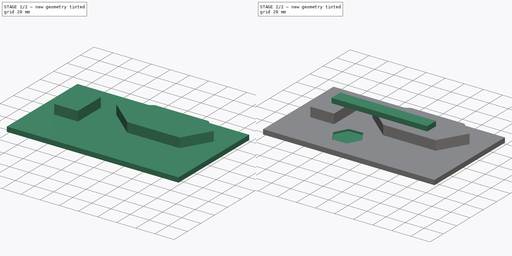
[diagram: build sequence overview — one tinted view per stage of 2, left to right]
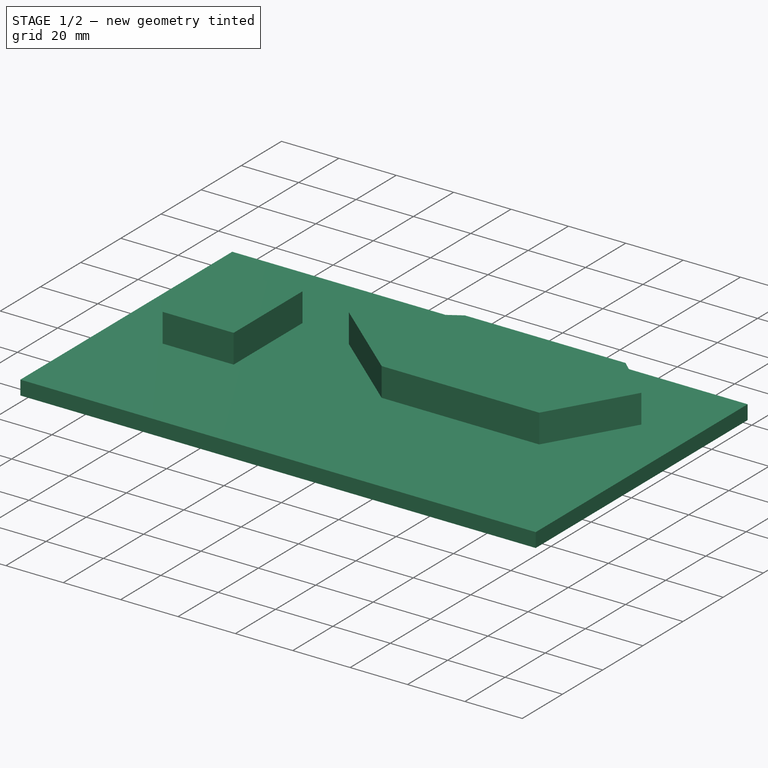
[diagram: stage 1 of 2 — iso view after this stage's code; geometry added in this stage tinted green]
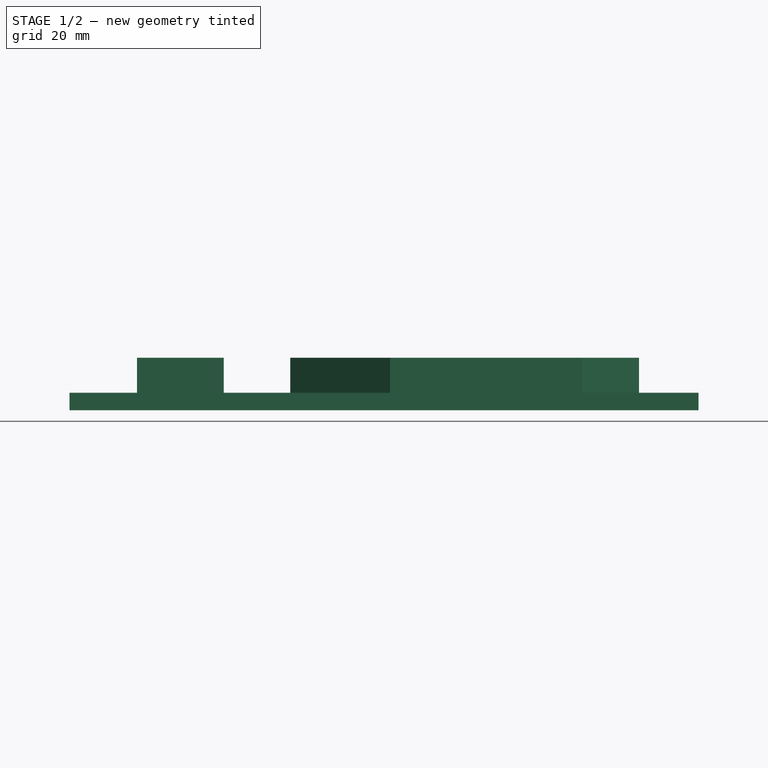
[diagram: stage 1 of 2 — front view after this stage's code; geometry added in this stage tinted green]
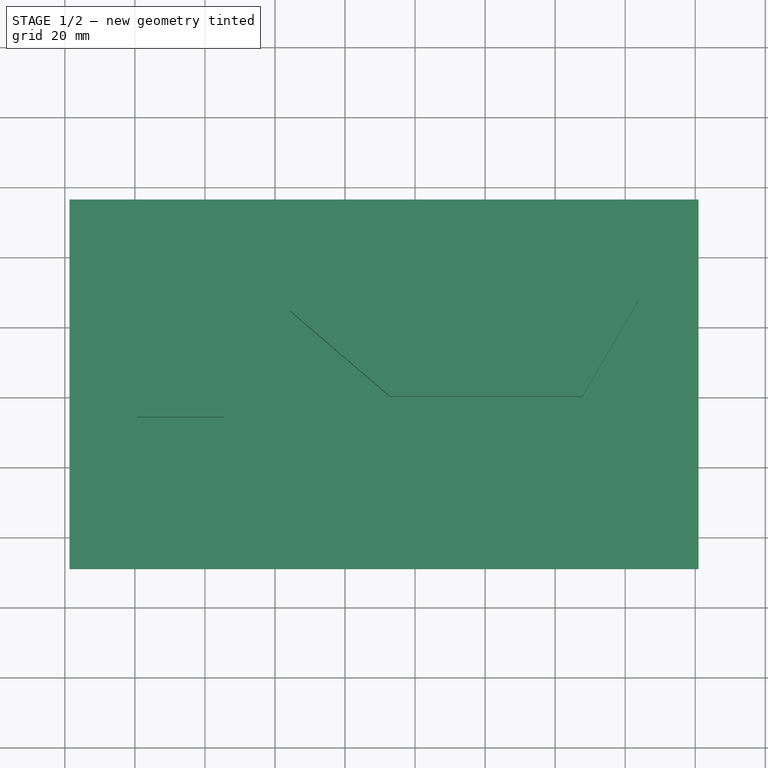
[diagram: stage 1 of 2 — top view after this stage's code; geometry added in this stage tinted green]
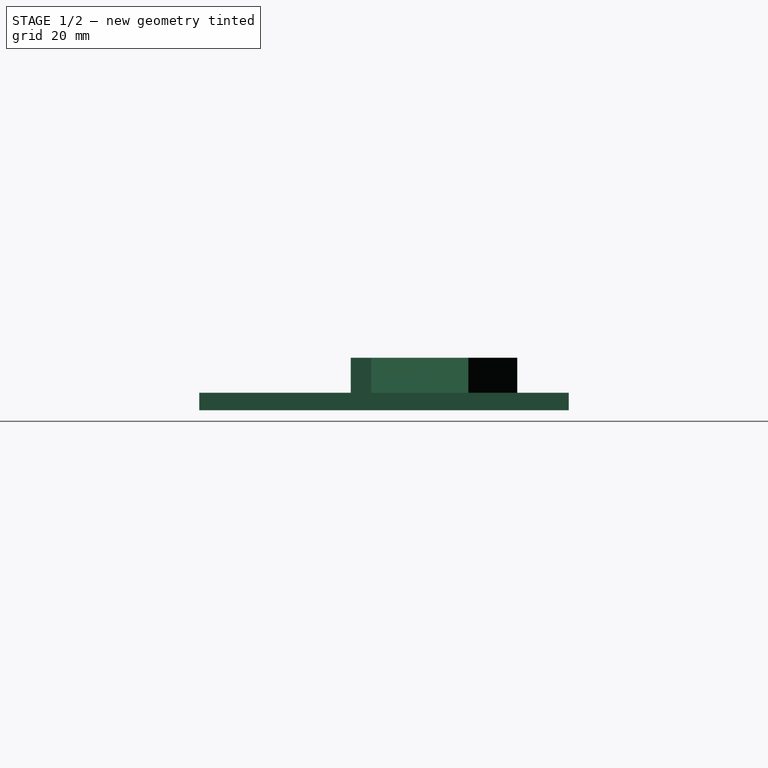
[diagram: stage 1 of 2 — right view after this stage's code; geometry added in this stage tinted green]
FCSTD DOCUMENT  (FreeCAD 0.17R13122 (Git))
Label: layerslice
License: All rights reserved
LicenseURL: http://en.wikipedia.org/wiki/All_rights_reserved
objects: Sketcher::SketchObject×4, PartDesign::Pad×3, PartDesign::Pocket×1, PartDesign::Body×1, Part::Feature×1
note: 14 computed .brp shape members not serialized (recipe doc carries the construction recipe); baked Part::Feature solids carry a one-line shape summary decoded from their .brp

FEATURE [Sketcher::SketchObject] Sketch
  MapMode = 5
  Support = -> [XY_Plane]
  sketch-geometry (4):
    g0: LineSegment StartX=-78.6869 StartY=56.522 StartZ=0 EndX=100.953 EndY=56.522 EndZ=0
    g1: LineSegment StartX=100.953 StartY=56.522 StartZ=0 EndX=100.953 EndY=-48.9651 EndZ=0
    g2: LineSegment StartX=100.953 StartY=-48.9651 StartZ=0 EndX=-78.6869 EndY=-48.9651 EndZ=0
    g3: LineSegment StartX=-78.6869 StartY=-48.9651 StartZ=0 EndX=-78.6869 EndY=56.522 EndZ=0
  constraints (8):
    c: Coincident(g0,g1)
    c: Coincident(g1,g2)
    c: Coincident(g2,g3)
    c: Coincident(g3,g0)
    c: Horizontal(g0)
    c: Horizontal(g2)
    c: Vertical(g1)
    c: Vertical(g3)
FEATURE [PartDesign::Pad] Pad
  Length = 5
  Length2 = 100
  Profile = -> Sketch
  Type = 0
FEATURE [Sketcher::SketchObject] Sketch001
  MapMode = 5
  Placement = pos=(0,0,5) rot=(0,0,1;0rad)
  Support = -> [Pad]
  sketch-geometry (10):
    g0: LineSegment StartX=-59.4081 StartY=28.5976 StartZ=0 EndX=-59.4081 EndY=-5.71804 EndZ=0
    g1: LineSegment StartX=-34.6354 StartY=28.5976 StartZ=0 EndX=-34.6354 EndY=-5.71804 EndZ=0
    g2: LineSegment StartX=12.8552 StartY=0.145447 StartZ=0 EndX=67.7904 EndY=0.145447 EndZ=0
    g3: LineSegment StartX=12.6862 StartY=41.8159 StartZ=0 EndX=68.7245 EndY=41.8159 EndZ=0
    g4: LineSegment StartX=12.6862 StartY=41.8159 StartZ=0 EndX=-15.6392 EndY=24.5325 EndZ=0
    g5: LineSegment StartX=-15.6392 StartY=24.5325 StartZ=0 EndX=12.8552 EndY=0.145447 EndZ=0
    g6: LineSegment StartX=68.7245 StartY=41.8159 StartZ=0 EndX=83.9629 EndY=27.8697 EndZ=0
    g7: LineSegment StartX=83.9629 StartY=27.8697 StartZ=0 EndX=67.7904 EndY=0.145447 EndZ=0
    g8: LineSegment StartX=-59.4081 StartY=28.5976 StartZ=0 EndX=-34.6354 EndY=28.5976 EndZ=0
    g9: LineSegment StartX=-59.4081 StartY=-5.71804 StartZ=0 EndX=-34.6354 EndY=-5.71804 EndZ=0
  constraints (14):
    c: Vertical(g0)
    c: Horizontal(g2)
    c: Coincident(g3,g4)
    c: Coincident(g4,g5)
    c: Coincident(g5,g2)
    c: Coincident(g3,g6)
    c: Coincident(g6,g7)
    c: Coincident(g7,g2)
    c: Coincident(g0,g8)
    c: Coincident(g8,g1)
    c: Horizontal(g8)
    c: Coincident(g0,g9)
    c: Coincident(g9,g1)
    c: Horizontal(g9)
FEATURE [PartDesign::Pad] Pad001
  BaseFeature = -> Pad
  Length = 10
  Length2 = 100
  Profile = -> Sketch001
  Type = 0
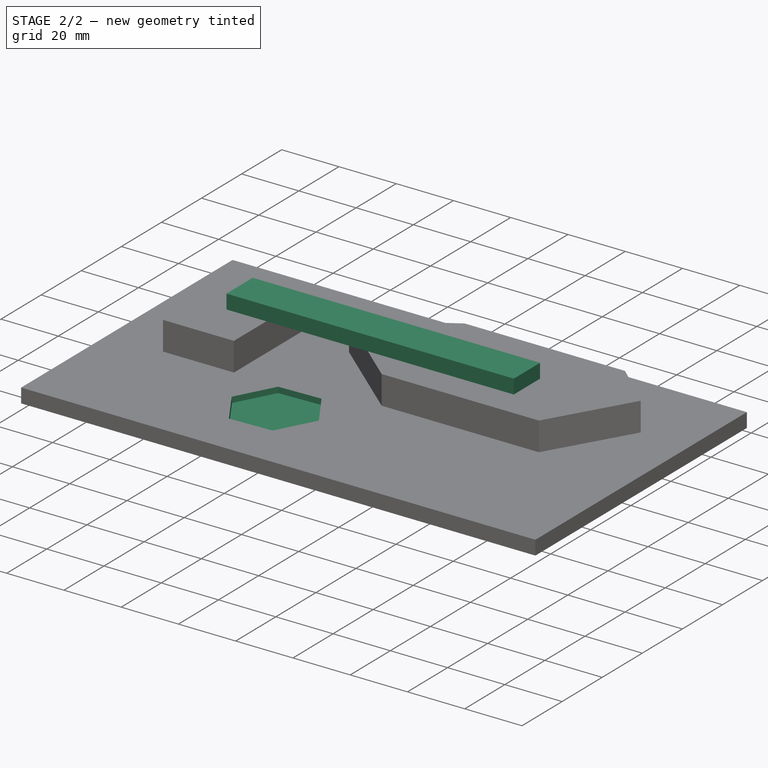
[diagram: stage 2 of 2 — iso view after this stage's code; geometry added in this stage tinted green]
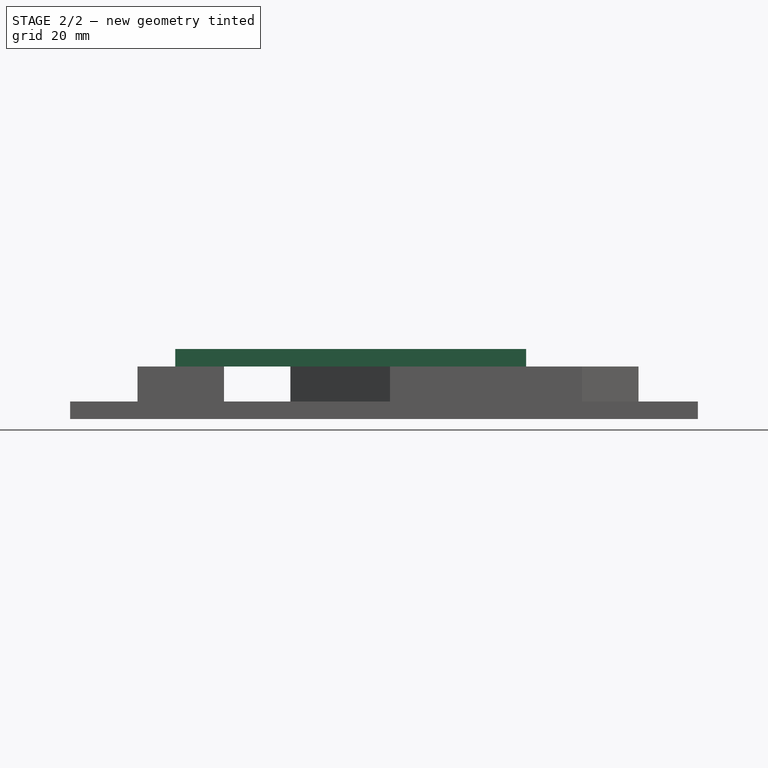
[diagram: stage 2 of 2 — front view after this stage's code; geometry added in this stage tinted green]
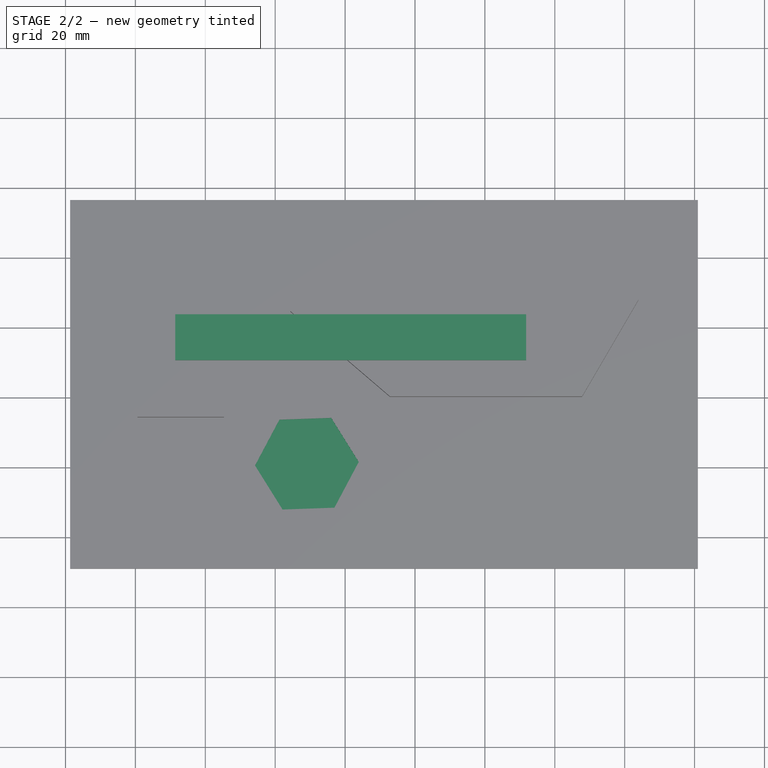
[diagram: stage 2 of 2 — top view after this stage's code; geometry added in this stage tinted green]
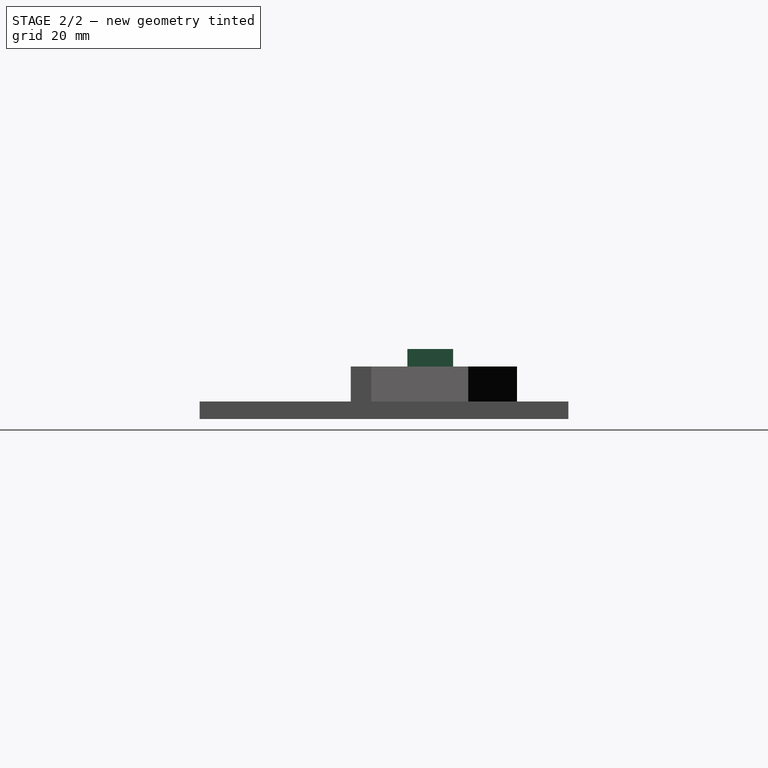
[diagram: stage 2 of 2 — right view after this stage's code; geometry added in this stage tinted green]
FEATURE [Sketcher::SketchObject] Sketch002
  MapMode = 5
  Placement = pos=(0,0,5) rot=(0,0,1;0rad)
  Support = -> [Pad001]
  sketch-geometry (7):
    g0: LineSegment StartX=-3.05498 StartY=-31.5335 StartZ=0 EndX=3.91551 EndY=-18.4209 EndZ=0
    g1: LineSegment StartX=3.91551 StartY=-18.4209 StartZ=0 EndX=-3.95505 EndY=-5.82805 EndZ=0
    g2: LineSegment StartX=-3.95505 StartY=-5.82805 StartZ=0 EndX=-18.7961 EndY=-6.3477 EndZ=0
    g3: LineSegment StartX=-18.7961 StartY=-6.3477 StartZ=0 EndX=-25.7666 EndY=-19.4602 EndZ=0
    g4: LineSegment StartX=-25.7666 StartY=-19.4602 StartZ=0 EndX=-17.896 EndY=-32.0531 EndZ=0
    g5: LineSegment StartX=-17.896 StartY=-32.0531 StartZ=0 EndX=-3.05498 EndY=-31.5335 EndZ=0
    g6: Circle [constr] CenterX=-10.9255 CenterY=-18.9406 CenterZ=0 NormalX=0 NormalY=0 NormalZ=1 AngleXU=0 Radius=14.8501
  constraints (13):
    c: Coincident(g0,g1)
    c: Coincident(g1,g2)
    c: Coincident(g2,g3)
    c: Coincident(g3,g4)
    c: Coincident(g4,g5)
    c: Coincident(g5,g0)
    c: Equal(g0, g1-g5) x5
    c: PointOnObject(g0,g6)
    c: PointOnObject(g1,g6)
    c: PointOnObject(g2,g6)
    c: PointOnObject(g3,g6)
    c: PointOnObject(g4,g6)
    c: PointOnObject(g5,g6)
FEATURE [PartDesign::Pocket] Pocket
  BaseFeature = -> Pad001
  Length = 2
  Length2 = 100
  Profile = -> Sketch002
  Type = 0
FEATURE [Sketcher::SketchObject] Sketch003
  MapMode = 5
  Placement = pos=(0,0,15) rot=(0,0,1;0rad)
  Support = -> [Pocket]
  sketch-geometry (4):
    g0: LineSegment StartX=-48.5886 StartY=10.4807 StartZ=0 EndX=51.7836 EndY=10.4807 EndZ=0
    g1: LineSegment StartX=51.7836 StartY=10.4807 StartZ=0 EndX=51.7836 EndY=23.5727 EndZ=0
    g2: LineSegment StartX=51.7836 StartY=23.5727 StartZ=0 EndX=-48.5886 EndY=23.5727 EndZ=0
    g3: LineSegment StartX=-48.5886 StartY=23.5727 StartZ=0 EndX=-48.5886 EndY=10.4807 EndZ=0
  constraints (8):
    c: Coincident(g0,g1)
    c: Coincident(g1,g2)
    c: Coincident(g2,g3)
    c: Coincident(g3,g0)
    c: Horizontal(g0)
    c: Horizontal(g2)
    c: Vertical(g1)
    c: Vertical(g3)
FEATURE [PartDesign::Pad] Pad002
  BaseFeature = -> Pocket
  Length = 5
  Length2 = 100
  Profile = -> Sketch003
  Type = 0
FEATURE [PartDesign::Body] Body
  Group = -> [Sketch,Pad,Sketch001,Pad001,Sketch002,Pocket,Sketch003,Pad002]
  Origin = -> Origin
  Tip = -> Pad002
FEATURE [Part::Feature] Pad002001001  label="Pad004"
  shape: bbox 179.6 x 105.5 x 20 mm, 31 faces (baked)
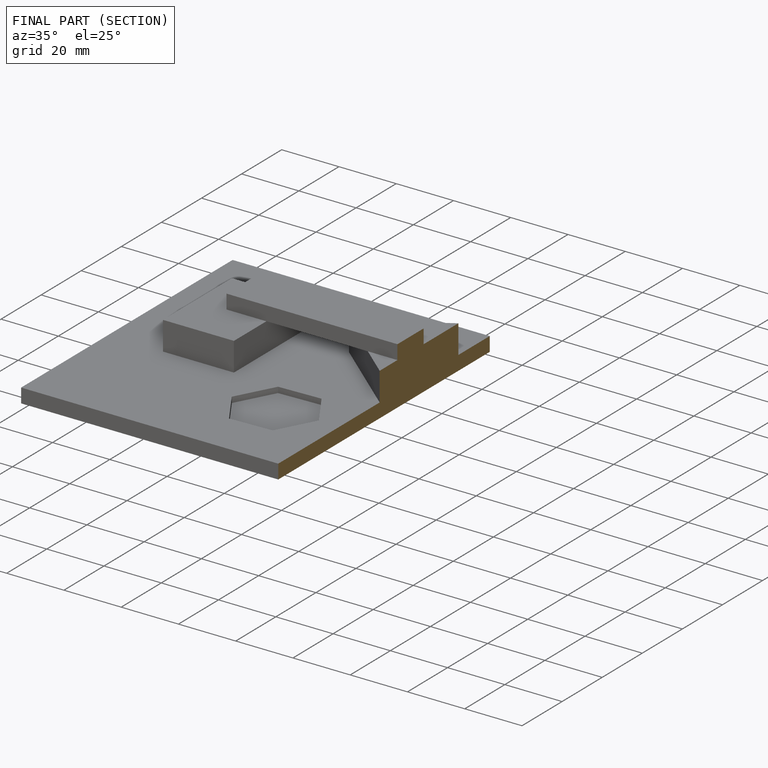
[diagram: finished part — half-section view (interior)]
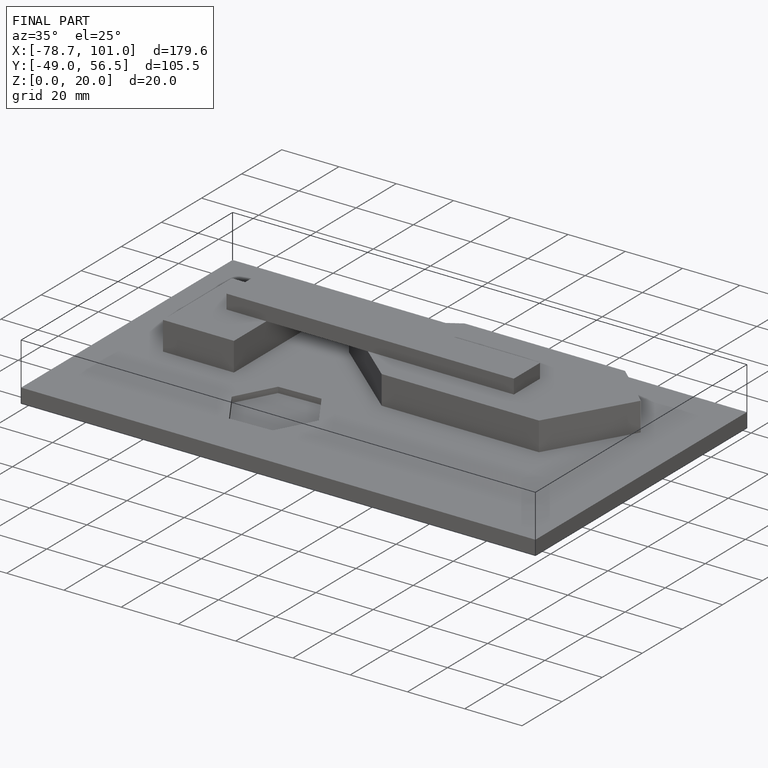
[diagram: finished part — iso view with bounding-box wireframe]
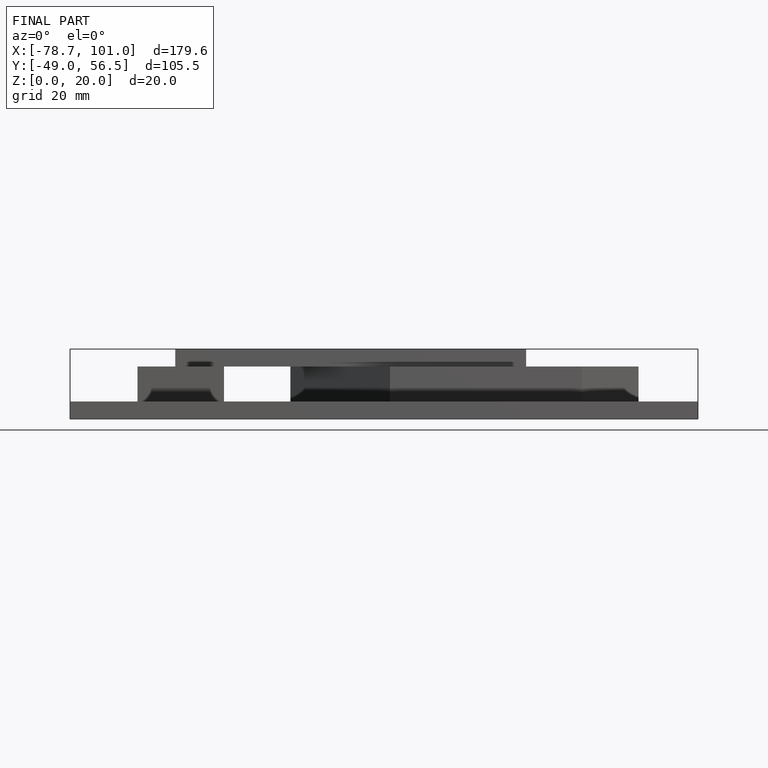
[diagram: finished part — front view with bounding-box wireframe]
